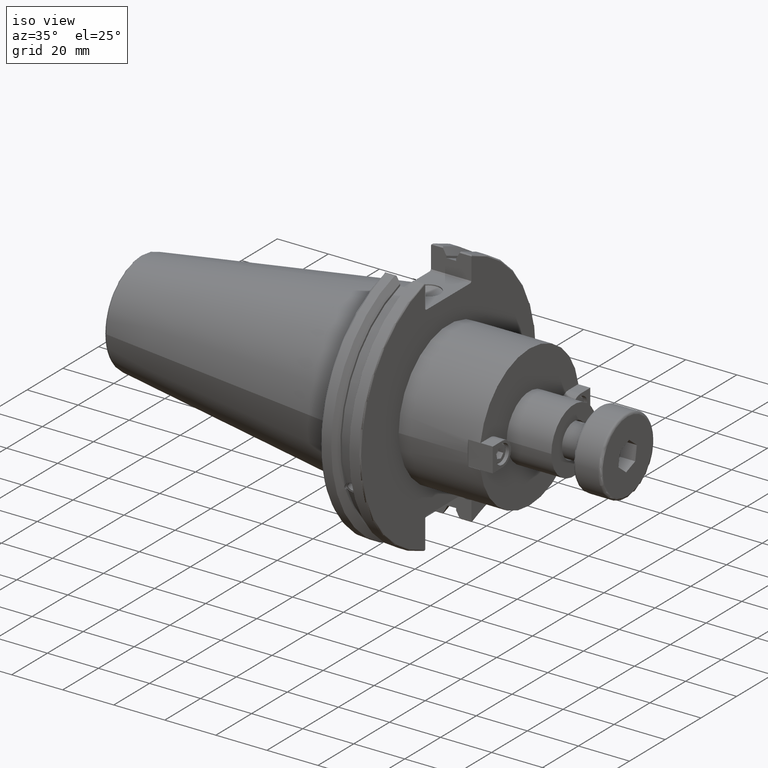
[diagram: clean part render]
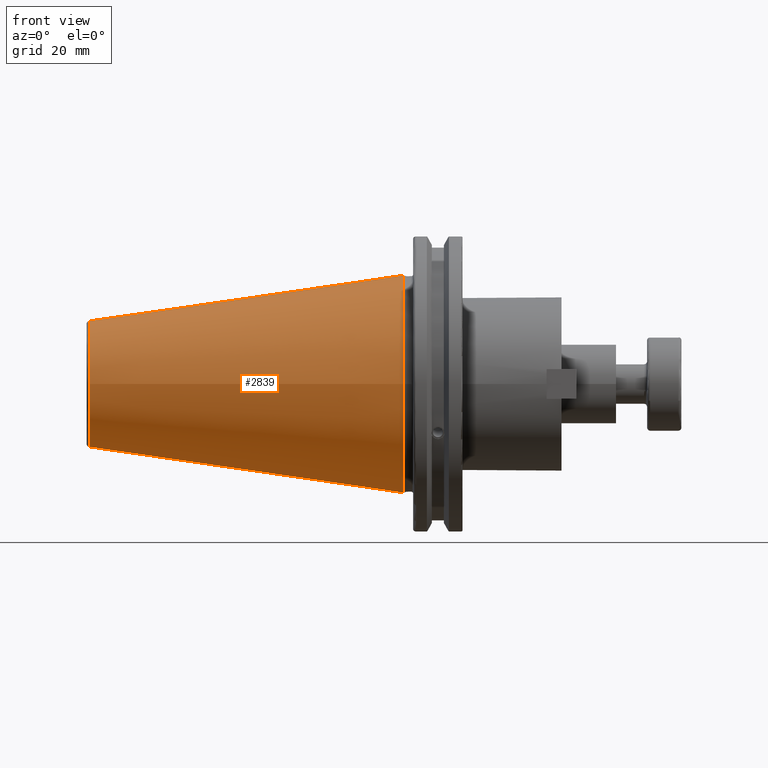
[diagram: tour spotlight — one face highlighted and labeled with its STEP entity id]
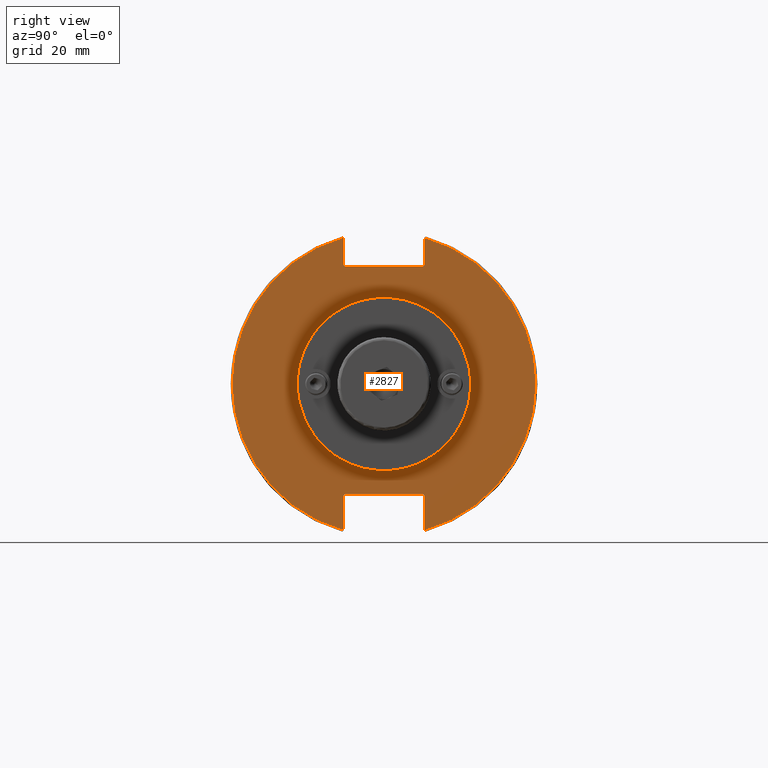
[diagram: tour spotlight — one face highlighted and labeled with its STEP entity id]
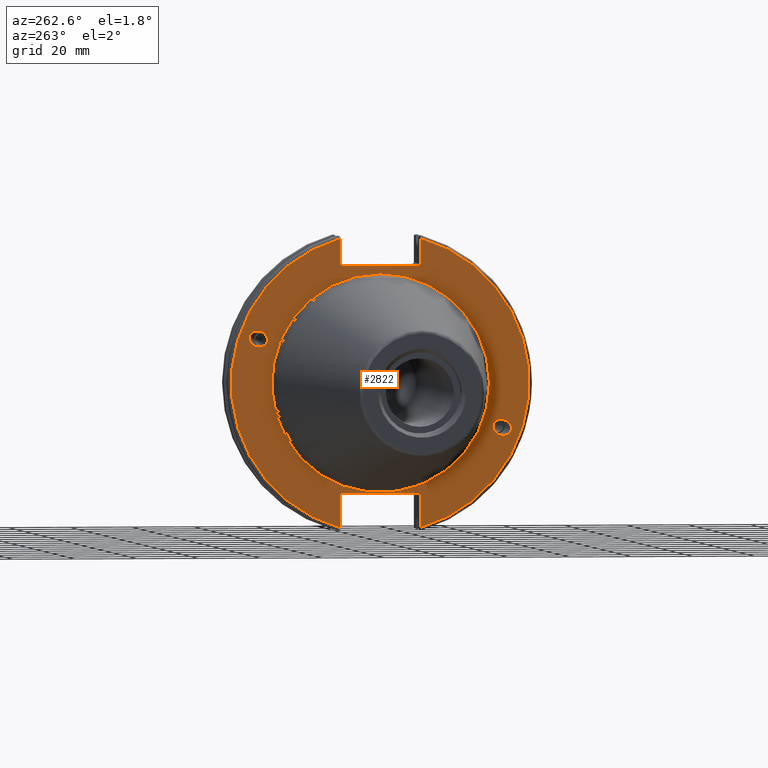
[diagram: tour spotlight — one face highlighted and labeled with its STEP entity id]
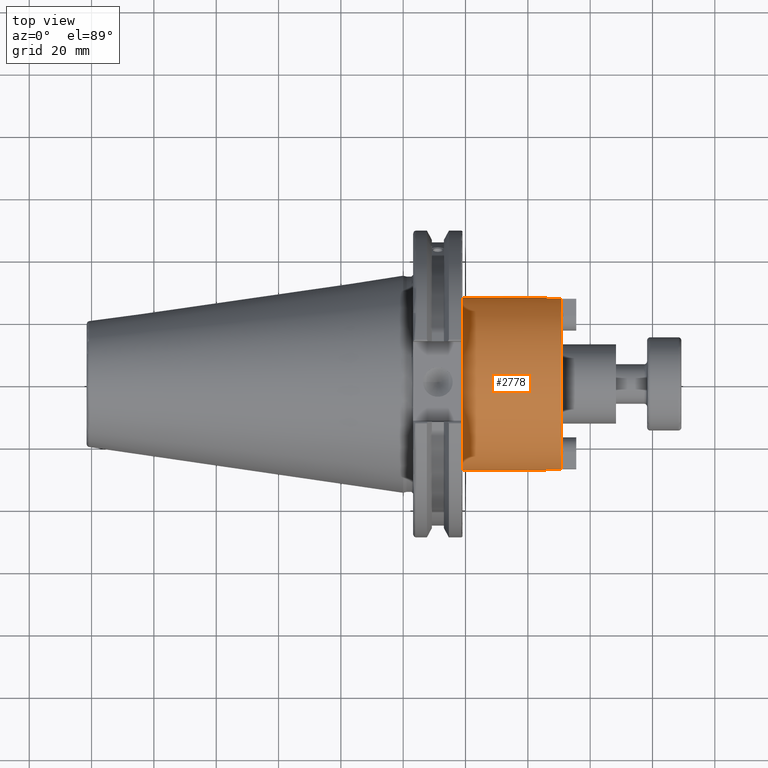
[diagram: tour spotlight — one face highlighted and labeled with its STEP entity id]
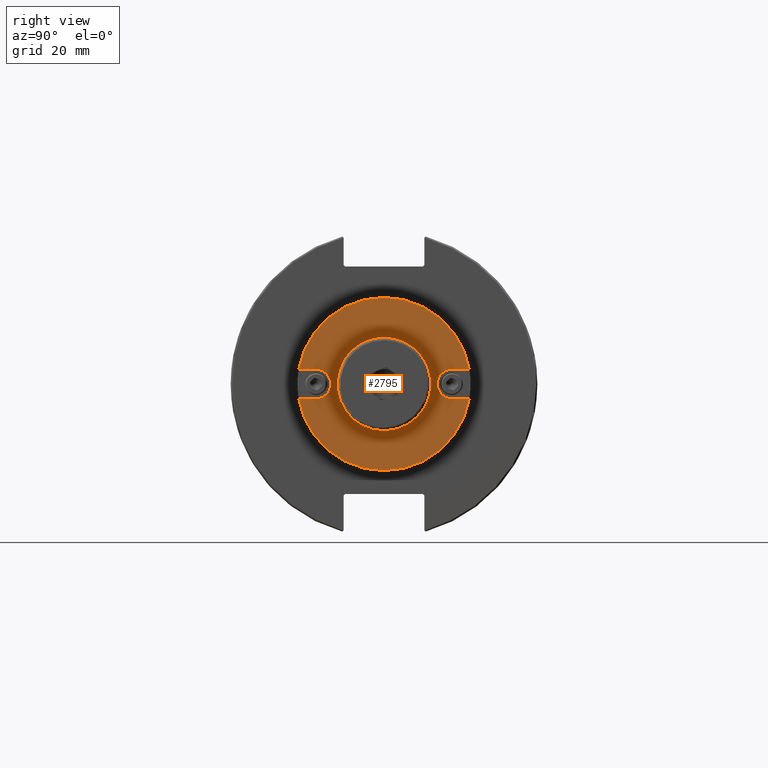
[diagram: tour spotlight — one face highlighted and labeled with its STEP entity id]
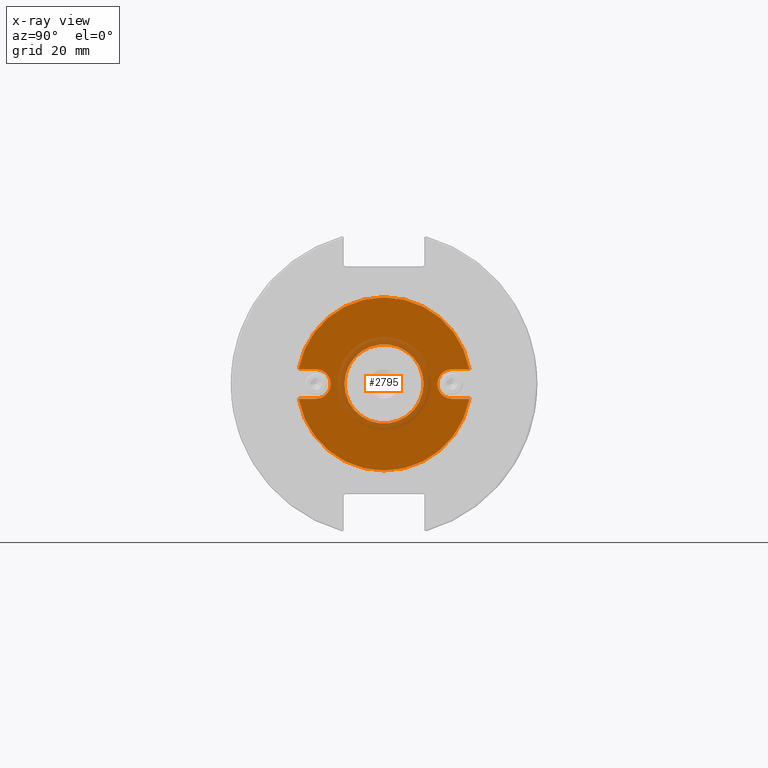
[diagram: x-ray of the same camera — body ghosted, this tour face saturated]
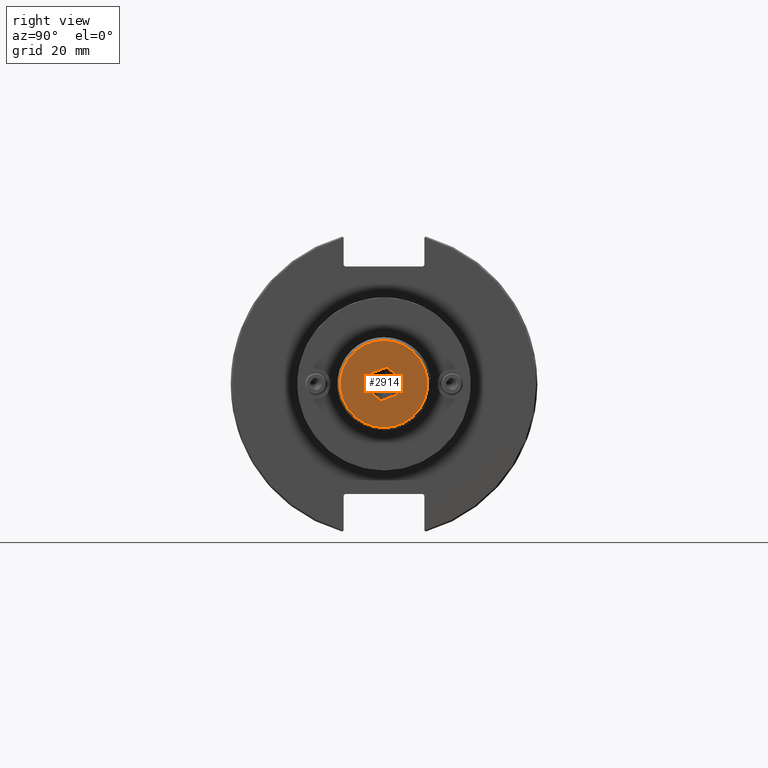
[diagram: tour spotlight — one face highlighted and labeled with its STEP entity id]
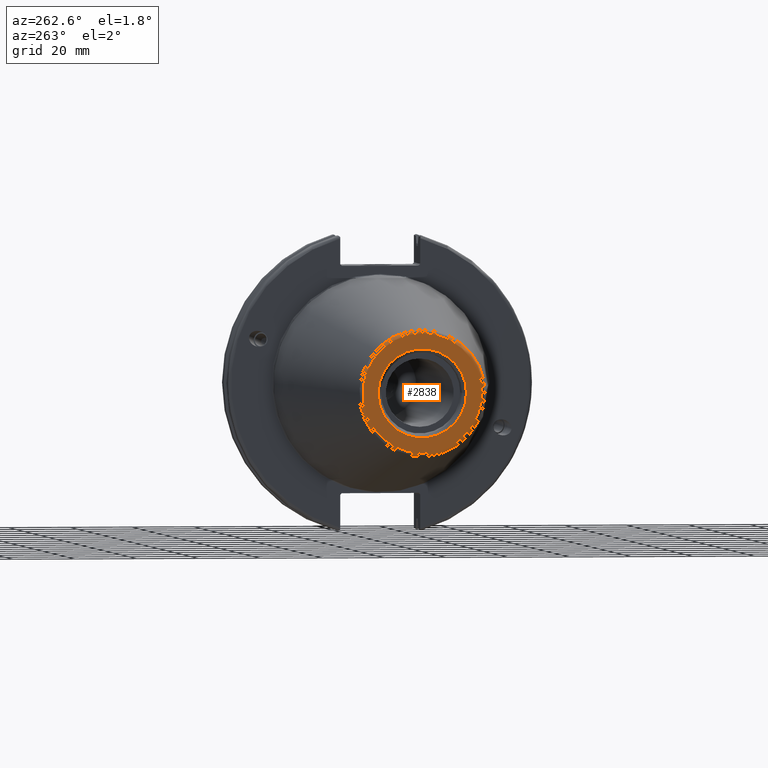
[diagram: tour spotlight — one face highlighted and labeled with its STEP entity id]
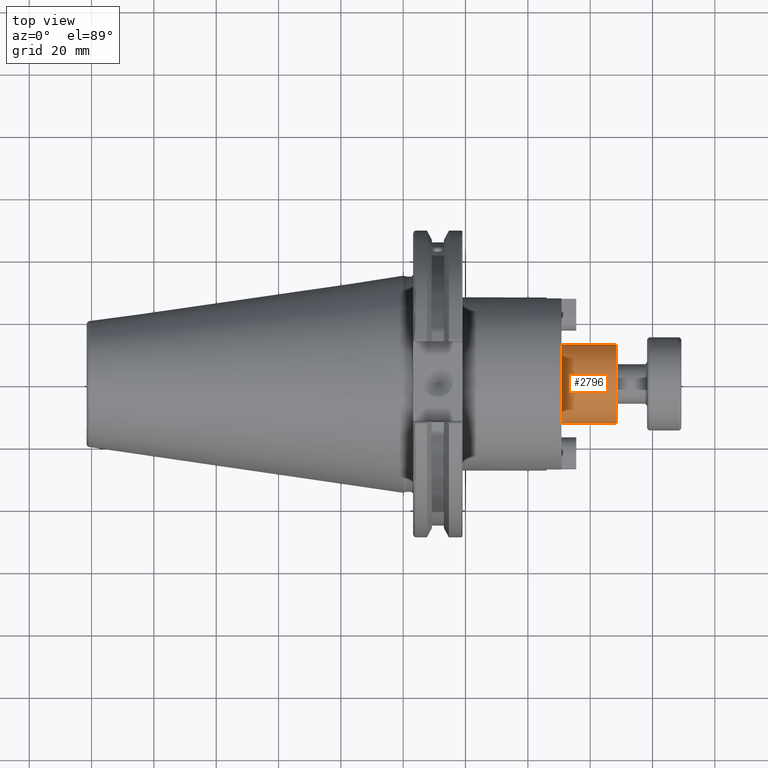
[diagram: tour spotlight — one face highlighted and labeled with its STEP entity id]
A machine part: a face-by-face anatomy tour. The part has 167 B-rep faces; the first image is the clean iso view, then the 8 largest visible faces are spotlighted one at a time (largest first), each with its STEP entity span.

Face 1 — front view, entity #2839. In plain terms, the highlighted conical surface has half-angle 8.297 deg.
Definition (entity closure, byte-faithful):
#571=CONICAL_SURFACE('',#3211,27.5166666666666,0.14481249823894);
#673=CIRCLE('',#3205,20.233121911427);
#674=CIRCLE('',#3206,20.233121911427);
#678=CIRCLE('',#3212,34.925);
#813=FACE_OUTER_BOUND('',#976,.T.);
#976=EDGE_LOOP('',(#2357,#2358,#2359,#2360,#2361));
#1154=LINE('',#5186,#1320);
#1320=VECTOR('',#3782,27.5166666666666);
#1550=VERTEX_POINT('',#5173);
#1551=VERTEX_POINT('',#5174);
#1554=VERTEX_POINT('',#5184);
#1846=EDGE_CURVE('',#1550,#1551,#673,.T.);
#1847=EDGE_CURVE('',#1551,#1550,#674,.T.);
#1851=EDGE_CURVE('',#1554,#1554,#678,.T.);
#1852=EDGE_CURVE('',#1554,#1551,#1154,.T.);
#2357=ORIENTED_EDGE('',*,*,#1851,.F.);
#2358=ORIENTED_EDGE('',*,*,#1852,.T.);
#2359=ORIENTED_EDGE('',*,*,#1846,.F.);
#2360=ORIENTED_EDGE('',*,*,#1847,.F.);
#2361=ORIENTED_EDGE('',*,*,#1852,.F.);
#2839=ADVANCED_FACE('',(#813),#571,.T.);
#3205=AXIS2_PLACEMENT_3D('',#5175,#3766,#3767);
#3206=AXIS2_PLACEMENT_3D('',#5176,#3768,#3769);
#3211=AXIS2_PLACEMENT_3D('',#5183,#3778,#3779);
#3212=AXIS2_PLACEMENT_3D('',#5185,#3780,#3781);
#3766=DIRECTION('center_axis',(-1.,0.,0.));
#3767=DIRECTION('ref_axis',(0.,-1.,3.06161699786838E-17));
#3768=DIRECTION('center_axis',(-1.,0.,0.));
#3769=DIRECTION('ref_axis',(0.,-1.,3.06161699786838E-17));
#3778=DIRECTION('center_axis',(1.,0.,0.));
#3779=DIRECTION('ref_axis',(0.,1.,0.));
#3780=DIRECTION('center_axis',(1.,0.,0.));
#3781=DIRECTION('ref_axis',(0.,0.,-1.));
#3782=DIRECTION('',(-0.989532981063281,0.144306893071729,1.76724974695192E-17));
#5173=CARTESIAN_POINT('',(-100.744306893072,-2.47784279855872E-15,20.233121911427));
#5174=CARTESIAN_POINT('',(-100.744306893072,-20.233121911427,-2.47784279855872E-15));
#5175=CARTESIAN_POINT('Origin',(-100.744306893072,0.,-3.09730349819841E-15));
#5176=CARTESIAN_POINT('Origin',(-100.744306893072,0.,-3.09730349819841E-15));
#5183=CARTESIAN_POINT('Origin',(-50.8,0.,0.));
#5184=CARTESIAN_POINT('',(-8.88178419700125E-15,-34.925,-4.27707894602213E-15));
#5185=CARTESIAN_POINT('Origin',(0.,0.,0.));
#5186=CARTESIAN_POINT('',(-50.8,-27.5166666666666,-3.3698197756538E-15));

Face 2 — right view, entity #2827. In plain terms, the highlighted planar face has unit normal (1, 0, 0).
Definition (entity closure, byte-faithful):
#599=FACE_BOUND('',#963,.T.);
#616=CIRCLE('',#3087,27.79);
#666=CIRCLE('',#3185,48.7125);
#668=CIRCLE('',#3190,48.7125);
#801=FACE_OUTER_BOUND('',#962,.T.);
#962=EDGE_LOOP('',(#2279,#2280,#2281,#2282,#2283,#2284,#2285,#2286,#2287,
#2288,#2289,#2290));
#963=EDGE_LOOP('',(#2291));
#1126=LINE('',#4997,#1292);
#1132=LINE('',#5019,#1298);
#1133=LINE('',#5021,#1299);
#1134=LINE('',#5023,#1300);
#1135=LINE('',#5025,#1301);
#1136=LINE('',#5027,#1302);
#1137=LINE('',#5031,#1303);
#1138=LINE('',#5033,#1304);
#1139=LINE('',#5035,#1305);
#1140=LINE('',#5036,#1306);
#1292=VECTOR('',#3706,10.);
#1298=VECTOR('',#3714,10.);
#1299=VECTOR('',#3715,10.);
#1300=VECTOR('',#3716,10.);
#1301=VECTOR('',#3717,10.);
#1302=VECTOR('',#3718,10.);
#1303=VECTOR('',#3721,10.);
#1304=VECTOR('',#3722,10.);
#1305=VECTOR('',#3723,10.);
#1306=VECTOR('',#3724,10.);
#1405=VERTEX_POINT('',#4280);
#1511=VERTEX_POINT('',#4957);
#1512=VERTEX_POINT('',#4962);
#1516=VERTEX_POINT('',#4996);
#1522=VERTEX_POINT('',#5018);
#1523=VERTEX_POINT('',#5020);
#1524=VERTEX_POINT('',#5022);
#1525=VERTEX_POINT('',#5024);
#1526=VERTEX_POINT('',#5026);
#1527=VERTEX_POINT('',#5028);
#1528=VERTEX_POINT('',#5030);
#1529=VERTEX_POINT('',#5032);
#1530=VERTEX_POINT('',#5034);
#1648=EDGE_CURVE('',#1405,#1405,#616,.T.);
#1789=EDGE_CURVE('',#1511,#1512,#666,.T.);
#1796=EDGE_CURVE('',#1516,#1512,#1126,.T.);
#1804=EDGE_CURVE('',#1511,#1522,#1132,.T.);
#1805=EDGE_CURVE('',#1523,#1522,#1133,.T.);
#1806=EDGE_CURVE('',#1523,#1524,#1134,.T.);
#1807=EDGE_CURVE('',#1525,#1524,#1135,.T.);
#1808=EDGE_CURVE('',#1525,#1526,#1136,.T.);
#1809=EDGE_CURVE('',#1527,#1526,#668,.T.);
#1810=EDGE_CURVE('',#1527,#1528,#1137,.T.);
#1811=EDGE_CURVE('',#1529,#1528,#1138,.T.);
#1812=EDGE_CURVE('',#1529,#1530,#1139,.T.);
#1813=EDGE_CURVE('',#1516,#1530,#1140,.T.);
#2279=ORIENTED_EDGE('',*,*,#1789,.F.);
#2280=ORIENTED_EDGE('',*,*,#1804,.T.);
#2281=ORIENTED_EDGE('',*,*,#1805,.F.);
#2282=ORIENTED_EDGE('',*,*,#1806,.T.);
#2283=ORIENTED_EDGE('',*,*,#1807,.F.);
#2284=ORIENTED_EDGE('',*,*,#1808,.T.);
#2285=ORIENTED_EDGE('',*,*,#1809,.F.);
#2286=ORIENTED_EDGE('',*,*,#1810,.T.);
#2287=ORIENTED_EDGE('',*,*,#1811,.F.);
#2288=ORIENTED_EDGE('',*,*,#1812,.T.);
#2289=ORIENTED_EDGE('',*,*,#1813,.F.);
#2290=ORIENTED_EDGE('',*,*,#1796,.T.);
#2291=ORIENTED_EDGE('',*,*,#1648,.T.);
#2719=PLANE('',#3189);
#2827=ADVANCED_FACE('',(#801,#599),#2719,.T.);
#3087=AXIS2_PLACEMENT_3D('',#4282,#3448,#3449);
#3185=AXIS2_PLACEMENT_3D('',#4963,#3696,#3697);
#3189=AXIS2_PLACEMENT_3D('',#5017,#3712,#3713);
#3190=AXIS2_PLACEMENT_3D('',#5029,#3719,#3720);
#3448=DIRECTION('center_axis',(-1.,0.,0.));
#3449=DIRECTION('ref_axis',(0.,1.,0.));
#3696=DIRECTION('center_axis',(-1.,0.,0.));
#3697=DIRECTION('ref_axis',(0.,-1.,1.60812264967664E-16));
#3706=DIRECTION('',(0.,0.,1.));
#3712=DIRECTION('center_axis',(1.,0.,0.));
#3713=DIRECTION('ref_axis',(0.,0.,-1.));
#3714=DIRECTION('',(0.,0.,1.));
#3715=DIRECTION('',(0.,-0.707106781186549,-0.707106781186546));
#3716=DIRECTION('',(0.,1.,0.));
#3717=DIRECTION('',(0.,-0.707106781186549,0.707106781186546));
#3718=DIRECTION('',(0.,0.,-1.));
#3719=DIRECTION('center_axis',(-1.,0.,0.));
#3720=DIRECTION('ref_axis',(0.,1.,-6.12323399573677E-17));
#3721=DIRECTION('',(0.,0.,-1.));
#3722=DIRECTION('',(0.,0.707106781186549,0.707106781186546));
#3723=DIRECTION('',(0.,-1.,0.));
#3724=DIRECTION('',(0.,0.707106781186549,-0.707106781186546));
#4280=CARTESIAN_POINT('',(19.05,-27.79,-3.40329345483049E-15));
#4282=CARTESIAN_POINT('Origin',(19.05,0.,0.));
#4957=CARTESIAN_POINT('',(19.05,-12.95,-46.9596119686907));
#4962=CARTESIAN_POINT('',(19.05,-12.95,46.9596119686907));
#4963=CARTESIAN_POINT('Origin',(19.05,0.,0.));
#4996=CARTESIAN_POINT('',(19.05,-12.95,38.219));
#4997=CARTESIAN_POINT('',(19.05,-12.95,18.8595));
#5017=CARTESIAN_POINT('Origin',(19.05,0.,0.));
#5018=CARTESIAN_POINT('',(19.05,-12.95,-35.806));
#5019=CARTESIAN_POINT('',(19.05,-12.95,-17.653));
#5020=CARTESIAN_POINT('',(19.05,-12.45,-35.306));
#5021=CARTESIAN_POINT('',(19.05,-0.635999999999989,-23.492));
#5022=CARTESIAN_POINT('',(19.05,12.45,-35.306));
#5023=CARTESIAN_POINT('',(19.05,-3.33066907387547E-15,-35.306));
#5024=CARTESIAN_POINT('',(19.05,12.95,-35.806));
#5025=CARTESIAN_POINT('',(19.05,0.635999999999982,-23.492));
#5026=CARTESIAN_POINT('',(19.05,12.95,-46.9596119686907));
#5027=CARTESIAN_POINT('',(19.05,12.95,-17.653));
#5028=CARTESIAN_POINT('',(19.05,12.95,46.9596119686907));
#5029=CARTESIAN_POINT('Origin',(19.05,0.,0.));
#5030=CARTESIAN_POINT('',(19.05,12.95,38.219));
#5031=CARTESIAN_POINT('',(19.05,12.95,18.8595));
#5032=CARTESIAN_POINT('',(19.05,12.45,37.719));
#5033=CARTESIAN_POINT('',(19.05,0.0327499999999836,25.30175));
#5034=CARTESIAN_POINT('',(19.05,-12.45,37.719));
#5035=CARTESIAN_POINT('',(19.05,0.,37.719));
#5036=CARTESIAN_POINT('',(19.05,-0.0327499999999817,25.30175));

Face 3 — auxiliary view, entity #2822. In plain terms, the highlighted planar face has unit normal (-1, 0, 0).
Definition (entity closure, byte-faithful):
#476=ELLIPSE('',#3139,3.05193647190364,2.5);
#477=ELLIPSE('',#3173,3.05193647190364,2.5);
#596=FACE_BOUND('',#955,.T.);
#597=FACE_BOUND('',#956,.T.);
#598=FACE_BOUND('',#957,.T.);
#661=CIRCLE('',#3177,35.125);
#663=CIRCLE('',#3180,48.2125);
#664=CIRCLE('',#3181,48.2125);
#796=FACE_OUTER_BOUND('',#954,.T.);
#954=EDGE_LOOP('',(#2237,#2238,#2239,#2240,#2241,#2242,#2243,#2244,#2245,
#2246,#2247,#2248));
#955=EDGE_LOOP('',(#2249));
#956=EDGE_LOOP('',(#2250));
#957=EDGE_LOOP('',(#2251));
#1113=LINE('',#4931,#1279);
#1114=LINE('',#4933,#1280);
#1115=LINE('',#4935,#1281);
#1116=LINE('',#4937,#1282);
#1117=LINE('',#4939,#1283);
#1118=LINE('',#4943,#1284);
#1119=LINE('',#4945,#1285);
#1120=LINE('',#4947,#1286);
#1121=LINE('',#4949,#1287);
#1122=LINE('',#4950,#1288);
#1279=VECTOR('',#3677,10.);
#1280=VECTOR('',#3678,10.);
#1281=VECTOR('',#3679,10.);
#1282=VECTOR('',#3680,10.);
#1283=VECTOR('',#3681,10.);
#1284=VECTOR('',#3684,10.);
#1285=VECTOR('',#3685,10.);
#1286=VECTOR('',#3686,10.);
#1287=VECTOR('',#3687,10.);
#1288=VECTOR('',#3688,10.);
#1457=VERTEX_POINT('',#4703);
#1493=VERTEX_POINT('',#4915);
#1496=VERTEX_POINT('',#4922);
#1497=VERTEX_POINT('',#4927);
#1498=VERTEX_POINT('',#4928);
#1499=VERTEX_POINT('',#4930);
#1500=VERTEX_POINT('',#4932);
#1501=VERTEX_POINT('',#4934);
#1502=VERTEX_POINT('',#4936);
#1503=VERTEX_POINT('',#4938);
#1504=VERTEX_POINT('',#4940);
#1505=VERTEX_POINT('',#4942);
#1506=VERTEX_POINT('',#4944);
#1507=VERTEX_POINT('',#4946);
#1508=VERTEX_POINT('',#4948);
#1721=EDGE_CURVE('',#1457,#1457,#476,.T.);
#1769=EDGE_CURVE('',#1493,#1493,#477,.T.);
#1772=EDGE_CURVE('',#1496,#1496,#661,.T.);
#1774=EDGE_CURVE('',#1497,#1498,#663,.T.);
#1775=EDGE_CURVE('',#1497,#1499,#1113,.T.);
#1776=EDGE_CURVE('',#1500,#1499,#1114,.T.);
#1777=EDGE_CURVE('',#1500,#1501,#1115,.T.);
#1778=EDGE_CURVE('',#1502,#1501,#1116,.T.);
#1779=EDGE_CURVE('',#1502,#1503,#1117,.T.);
#1780=EDGE_CURVE('',#1504,#1503,#664,.T.);
#1781=EDGE_CURVE('',#1504,#1505,#1118,.T.);
#1782=EDGE_CURVE('',#1506,#1505,#1119,.T.);
#1783=EDGE_CURVE('',#1506,#1507,#1120,.T.);
#1784=EDGE_CURVE('',#1508,#1507,#1121,.T.);
#1785=EDGE_CURVE('',#1508,#1498,#1122,.T.);
#2237=ORIENTED_EDGE('',*,*,#1774,.F.);
#2238=ORIENTED_EDGE('',*,*,#1775,.T.);
#2239=ORIENTED_EDGE('',*,*,#1776,.F.);
#2240=ORIENTED_EDGE('',*,*,#1777,.T.);
#2241=ORIENTED_EDGE('',*,*,#1778,.F.);
#2242=ORIENTED_EDGE('',*,*,#1779,.T.);
#2243=ORIENTED_EDGE('',*,*,#1780,.F.);
#2244=ORIENTED_EDGE('',*,*,#1781,.T.);
#2245=ORIENTED_EDGE('',*,*,#1782,.F.);
#2246=ORIENTED_EDGE('',*,*,#1783,.T.);
#2247=ORIENTED_EDGE('',*,*,#1784,.F.);
#2248=ORIENTED_EDGE('',*,*,#1785,.T.);
#2249=ORIENTED_EDGE('',*,*,#1721,.T.);
#2250=ORIENTED_EDGE('',*,*,#1769,.T.);
#2251=ORIENTED_EDGE('',*,*,#1772,.F.);
#2716=PLANE('',#3179);
#2822=ADVANCED_FACE('',(#796,#596,#597,#598),#2716,.T.);
#3139=AXIS2_PLACEMENT_3D('',#4705,#3578,#3579);
#3173=AXIS2_PLACEMENT_3D('',#4917,#3661,#3662);
#3177=AXIS2_PLACEMENT_3D('',#4924,#3669,#3670);
#3179=AXIS2_PLACEMENT_3D('',#4926,#3673,#3674);
#3180=AXIS2_PLACEMENT_3D('',#4929,#3675,#3676);
#3181=AXIS2_PLACEMENT_3D('',#4941,#3682,#3683);
#3578=DIRECTION('center_axis',(1.,0.,0.));
#3579=DIRECTION('ref_axis',(0.,-0.939692620785908,-0.342020143325668));
#3661=DIRECTION('center_axis',(1.,0.,0.));
#3662=DIRECTION('ref_axis',(0.,0.939692620785908,0.342020143325669));
#3669=DIRECTION('center_axis',(-1.,0.,0.));
#3670=DIRECTION('ref_axis',(0.,-1.,1.83697019872103E-16));
#3673=DIRECTION('center_axis',(-1.,0.,0.));
#3674=DIRECTION('ref_axis',(0.,0.,1.));
#3675=DIRECTION('center_axis',(1.,0.,0.));
#3676=DIRECTION('ref_axis',(0.,-1.,1.60812264967664E-16));
#3677=DIRECTION('',(0.,0.,-1.));
#3678=DIRECTION('',(0.,-0.707106781186549,0.707106781186546));
#3679=DIRECTION('',(0.,1.,0.));
#3680=DIRECTION('',(0.,-0.707106781186549,-0.707106781186546));
#3681=DIRECTION('',(0.,0.,1.));
#3682=DIRECTION('center_axis',(1.,0.,0.));
#3683=DIRECTION('ref_axis',(0.,1.,-6.12323399573677E-17));
#3684=DIRECTION('',(0.,0.,1.));
#3685=DIRECTION('',(0.,0.707106781186549,-0.707106781186546));
#3686=DIRECTION('',(0.,-1.,0.));
#3687=DIRECTION('',(0.,0.707106781186549,0.707106781186546));
#3688=DIRECTION('',(0.,0.,-1.));
#4703=CARTESIAN_POINT('',(3.175,-36.5992078912529,-13.3210222701368));
#4705=CARTESIAN_POINT('Origin',(3.175,-39.4670900730082,-14.3648460196781));
#4915=CARTESIAN_POINT('',(3.175,36.5992078912529,13.3210222701368));
#4917=CARTESIAN_POINT('Origin',(3.175,39.4670900730082,14.3648460196781));
#4922=CARTESIAN_POINT('',(3.175,-4.30157188200508E-15,35.125));
#4924=CARTESIAN_POINT('Origin',(3.175,0.,0.));
#4926=CARTESIAN_POINT('Origin',(3.175,49.2125,0.));
#4927=CARTESIAN_POINT('',(3.175,-12.95,46.4407434937254));
#4928=CARTESIAN_POINT('',(3.175,-12.95,-46.4407434937254));
#4929=CARTESIAN_POINT('Origin',(3.175,0.,0.));
#4930=CARTESIAN_POINT('',(3.175,-12.95,38.219));
#4931=CARTESIAN_POINT('',(3.175,-12.95,18.8595));
#4932=CARTESIAN_POINT('',(3.175,-12.45,37.719));
#4933=CARTESIAN_POINT('',(3.175,12.2703750000001,12.998625));
#4934=CARTESIAN_POINT('',(3.175,12.45,37.719));
#4935=CARTESIAN_POINT('',(3.175,24.60625,37.719));
#4936=CARTESIAN_POINT('',(3.175,12.95,38.219));
#4937=CARTESIAN_POINT('',(3.175,12.335875,37.604875));
#4938=CARTESIAN_POINT('',(3.175,12.95,46.4407434937254));
#4939=CARTESIAN_POINT('',(3.175,12.95,18.8595));
#4940=CARTESIAN_POINT('',(3.175,12.95,-46.4407434937254));
#4941=CARTESIAN_POINT('Origin',(3.175,0.,0.));
#4942=CARTESIAN_POINT('',(3.175,12.95,-35.806));
#4943=CARTESIAN_POINT('',(3.175,12.95,-17.653));
#4944=CARTESIAN_POINT('',(3.175,12.45,-35.306));
#4945=CARTESIAN_POINT('',(3.175,12.939125,-35.795125));
#4946=CARTESIAN_POINT('',(3.175,-12.45,-35.306));
#4947=CARTESIAN_POINT('',(3.175,24.60625,-35.306));
#4948=CARTESIAN_POINT('',(3.175,-12.95,-35.806));
#4949=CARTESIAN_POINT('',(3.175,11.6671250000001,-11.188875));
#4950=CARTESIAN_POINT('',(3.175,-12.95,-17.653));

Face 4 — top view, entity #2778. In plain terms, the highlighted cylindrical surface (bore or boss wall) has radius 27.79 mm, axis along (1, 0, 0).
Definition (entity closure, byte-faithful):
#524=CYLINDRICAL_SURFACE('',#3086,27.79);
#610=CIRCLE('',#3076,27.79);
#612=CIRCLE('',#3078,27.79);
#616=CIRCLE('',#3087,27.79);
#617=CIRCLE('',#3088,27.79);
#618=CIRCLE('',#3089,27.79);
#619=CIRCLE('',#3090,27.79);
#752=FACE_OUTER_BOUND('',#896,.T.);
#896=EDGE_LOOP('',(#2012,#2013,#2014,#2015,#2016,#2017,#2018,#2019,#2020,
#2021,#2022,#2023));
#1061=LINE('',#4248,#1227);
#1069=LINE('',#4277,#1235);
#1071=LINE('',#4281,#1237);
#1072=LINE('',#4286,#1238);
#1073=LINE('',#4290,#1239);
#1227=VECTOR('',#3413,10.);
#1235=VECTOR('',#3443,10.);
#1237=VECTOR('',#3447,27.79);
#1238=VECTOR('',#3452,10.);
#1239=VECTOR('',#3455,10.);
#1393=VERTEX_POINT('',#4246);
#1394=VERTEX_POINT('',#4247);
#1397=VERTEX_POINT('',#4255);
#1399=VERTEX_POINT('',#4259);
#1404=VERTEX_POINT('',#4276);
#1405=VERTEX_POINT('',#4280);
#1406=VERTEX_POINT('',#4283);
#1407=VERTEX_POINT('',#4285);
#1408=VERTEX_POINT('',#4287);
#1409=VERTEX_POINT('',#4289);
#1631=EDGE_CURVE('',#1393,#1394,#1061,.T.);
#1635=EDGE_CURVE('',#1394,#1397,#610,.T.);
#1638=EDGE_CURVE('',#1397,#1399,#612,.T.);
#1645=EDGE_CURVE('',#1399,#1404,#1069,.T.);
#1647=EDGE_CURVE('',#1397,#1405,#1071,.T.);
#1648=EDGE_CURVE('',#1405,#1405,#616,.T.);
#1649=EDGE_CURVE('',#1406,#1404,#617,.T.);
#1650=EDGE_CURVE('',#1406,#1407,#1072,.T.);
#1651=EDGE_CURVE('',#1407,#1408,#618,.T.);
#1652=EDGE_CURVE('',#1408,#1409,#1073,.T.);
#1653=EDGE_CURVE('',#1393,#1409,#619,.T.);
#2012=ORIENTED_EDGE('',*,*,#1631,.T.);
#2013=ORIENTED_EDGE('',*,*,#1635,.T.);
#2014=ORIENTED_EDGE('',*,*,#1647,.T.);
#2015=ORIENTED_EDGE('',*,*,#1648,.F.);
#2016=ORIENTED_EDGE('',*,*,#1647,.F.);
#2017=ORIENTED_EDGE('',*,*,#1638,.T.);
#2018=ORIENTED_EDGE('',*,*,#1645,.T.);
#2019=ORIENTED_EDGE('',*,*,#1649,.F.);
#2020=ORIENTED_EDGE('',*,*,#1650,.T.);
#2021=ORIENTED_EDGE('',*,*,#1651,.T.);
#2022=ORIENTED_EDGE('',*,*,#1652,.T.);
#2023=ORIENTED_EDGE('',*,*,#1653,.F.);
#2778=ADVANCED_FACE('',(#752),#524,.T.);
#3076=AXIS2_PLACEMENT_3D('',#4256,#3419,#3420);
#3078=AXIS2_PLACEMENT_3D('',#4261,#3424,#3425);
#3086=AXIS2_PLACEMENT_3D('',#4279,#3445,#3446);
#3087=AXIS2_PLACEMENT_3D('',#4282,#3448,#3449);
#3088=AXIS2_PLACEMENT_3D('',#4284,#3450,#3451);
#3089=AXIS2_PLACEMENT_3D('',#4288,#3453,#3454);
#3090=AXIS2_PLACEMENT_3D('',#4291,#3456,#3457);
#3413=DIRECTION('',(-1.,0.,0.));
#3419=DIRECTION('center_axis',(-1.,0.,0.));
#3420=DIRECTION('ref_axis',(0.,1.,0.));
#3424=DIRECTION('center_axis',(-1.,0.,0.));
#3425=DIRECTION('ref_axis',(0.,1.,0.));
#3443=DIRECTION('',(1.,0.,0.));
#3445=DIRECTION('center_axis',(1.,0.,0.));
#3446=DIRECTION('ref_axis',(0.,1.,0.));
#3447=DIRECTION('',(-1.,0.,0.));
#3448=DIRECTION('center_axis',(-1.,0.,0.));
#3449=DIRECTION('ref_axis',(0.,1.,0.));
#3450=DIRECTION('center_axis',(1.,0.,0.));
#3451=DIRECTION('ref_axis',(0.,0.,-1.));
#3452=DIRECTION('',(-1.,0.,0.));
#3453=DIRECTION('center_axis',(-1.,0.,0.));
#3454=DIRECTION('ref_axis',(0.,1.,0.));
#3455=DIRECTION('',(1.,0.,0.));
#3456=DIRECTION('center_axis',(1.,0.,0.));
#3457=DIRECTION('ref_axis',(0.,0.,-1.));
#4246=CARTESIAN_POINT('',(50.8,-27.3793078802222,-4.76));
#4247=CARTESIAN_POINT('',(46.03,-27.3793078802222,-4.76));
#4248=CARTESIAN_POINT('',(34.925,-27.3793078802222,-4.76));
#4255=CARTESIAN_POINT('',(46.03,-27.79,-3.40329345483049E-15));
#4256=CARTESIAN_POINT('Origin',(46.03,0.,0.));
#4259=CARTESIAN_POINT('',(46.03,-27.3793078802222,4.76000000000001));
#4261=CARTESIAN_POINT('Origin',(46.03,0.,0.));
#4276=CARTESIAN_POINT('',(50.8,-27.3793078802222,4.76000000000001));
#4277=CARTESIAN_POINT('',(34.925,-27.3793078802222,4.76000000000001));
#4279=CARTESIAN_POINT('Origin',(34.925,0.,0.));
#4280=CARTESIAN_POINT('',(19.05,-27.79,-3.40329345483049E-15));
#4281=CARTESIAN_POINT('',(34.925,-27.79,-3.40329345483049E-15));
#4282=CARTESIAN_POINT('Origin',(19.05,0.,0.));
#4283=CARTESIAN_POINT('',(50.8,27.3793078802222,4.76));
#4284=CARTESIAN_POINT('Origin',(50.8,0.,0.));
#4285=CARTESIAN_POINT('',(46.03,27.3793078802222,4.76));
#4286=CARTESIAN_POINT('',(34.925,27.3793078802222,4.76));
#4287=CARTESIAN_POINT('',(46.03,27.3793078802222,-4.76));
#4288=CARTESIAN_POINT('Origin',(46.03,0.,0.));
#4289=CARTESIAN_POINT('',(50.8,27.3793078802222,-4.76));
#4290=CARTESIAN_POINT('',(34.925,27.3793078802222,-4.76));
#4291=CARTESIAN_POINT('Origin',(50.8,0.,0.));

Face 5 — right view, entity #2795. An x-ray twin of the same camera follows (body ghosted, this face saturated) — the face is partly hidden behind the body. In plain terms, the highlighted planar face has unit normal (1, 0, 0).
Definition (entity closure, byte-faithful):
#587=FACE_BOUND('',#919,.T.);
#615=CIRCLE('',#3084,4.76000000000001);
#617=CIRCLE('',#3088,27.79);
#619=CIRCLE('',#3090,27.79);
#623=CIRCLE('',#3099,4.76000000000001);
#636=CIRCLE('',#3124,12.7);
#769=FACE_OUTER_BOUND('',#918,.T.);
#918=EDGE_LOOP('',(#2102,#2103,#2104,#2105,#2106,#2107,#2108,#2109));
#919=EDGE_LOOP('',(#2110));
#1062=LINE('',#4250,#1228);
#1070=LINE('',#4278,#1236);
#1076=LINE('',#4303,#1242);
#1081=LINE('',#4316,#1247);
#1228=VECTOR('',#3414,10.);
#1236=VECTOR('',#3444,10.);
#1242=VECTOR('',#3470,10.);
#1247=VECTOR('',#3485,10.);
#1393=VERTEX_POINT('',#4246);
#1395=VERTEX_POINT('',#4249);
#1403=VERTEX_POINT('',#4272);
#1404=VERTEX_POINT('',#4276);
#1406=VERTEX_POINT('',#4283);
#1409=VERTEX_POINT('',#4289);
#1413=VERTEX_POINT('',#4302);
#1416=VERTEX_POINT('',#4312);
#1439=VERTEX_POINT('',#4558);
#1632=EDGE_CURVE('',#1395,#1393,#1062,.T.);
#1643=EDGE_CURVE('',#1403,#1395,#615,.T.);
#1646=EDGE_CURVE('',#1404,#1403,#1070,.T.);
#1649=EDGE_CURVE('',#1406,#1404,#617,.T.);
#1653=EDGE_CURVE('',#1393,#1409,#619,.T.);
#1658=EDGE_CURVE('',#1413,#1406,#1076,.T.);
#1663=EDGE_CURVE('',#1416,#1413,#623,.T.);
#1665=EDGE_CURVE('',#1409,#1416,#1081,.T.);
#1698=EDGE_CURVE('',#1439,#1439,#636,.T.);
#2102=ORIENTED_EDGE('',*,*,#1632,.T.);
#2103=ORIENTED_EDGE('',*,*,#1653,.T.);
#2104=ORIENTED_EDGE('',*,*,#1665,.T.);
#2105=ORIENTED_EDGE('',*,*,#1663,.T.);
#2106=ORIENTED_EDGE('',*,*,#1658,.T.);
#2107=ORIENTED_EDGE('',*,*,#1649,.T.);
#2108=ORIENTED_EDGE('',*,*,#1646,.T.);
#2109=ORIENTED_EDGE('',*,*,#1643,.T.);
#2110=ORIENTED_EDGE('',*,*,#1698,.F.);
#2707=PLANE('',#3123);
#2795=ADVANCED_FACE('',(#769,#587),#2707,.T.);
#3084=AXIS2_PLACEMENT_3D('',#4273,#3438,#3439);
#3088=AXIS2_PLACEMENT_3D('',#4284,#3450,#3451);
#3090=AXIS2_PLACEMENT_3D('',#4291,#3456,#3457);
#3099=AXIS2_PLACEMENT_3D('',#4313,#3480,#3481);
#3123=AXIS2_PLACEMENT_3D('',#4557,#3536,#3537);
#3124=AXIS2_PLACEMENT_3D('',#4559,#3538,#3539);
#3414=DIRECTION('',(0.,-1.,1.92114806930115E-16));
#3438=DIRECTION('center_axis',(-1.,0.,0.));
#3439=DIRECTION('ref_axis',(0.,-1.22464679914735E-16,-1.));
#3444=DIRECTION('',(0.,1.,-5.28145528993553E-17));
#3450=DIRECTION('center_axis',(1.,0.,0.));
#3451=DIRECTION('ref_axis',(0.,0.,-1.));
#3456=DIRECTION('center_axis',(1.,0.,0.));
#3457=DIRECTION('ref_axis',(0.,0.,-1.));
#3470=DIRECTION('',(0.,1.,-6.965012701538E-17));
#3480=DIRECTION('center_axis',(-1.,0.,0.));
#3481=DIRECTION('ref_axis',(0.,0.,1.));
#3485=DIRECTION('',(0.,-1.,-6.965012701538E-17));
#3536=DIRECTION('center_axis',(1.,0.,0.));
#3537=DIRECTION('ref_axis',(0.,0.,-1.));
#3538=DIRECTION('center_axis',(1.,0.,0.));
#3539=DIRECTION('ref_axis',(0.,0.,-1.));
#4246=CARTESIAN_POINT('',(50.8,-27.3793078802222,-4.76));
#4249=CARTESIAN_POINT('',(50.8,-21.85,-4.76));
#4250=CARTESIAN_POINT('',(50.8,-4.575,-4.76));
#4272=CARTESIAN_POINT('',(50.8,-21.85,4.76000000000001));
#4273=CARTESIAN_POINT('Origin',(50.8,-21.85,6.46192953689909E-15));
#4276=CARTESIAN_POINT('',(50.8,-27.3793078802222,4.76000000000001));
#4278=CARTESIAN_POINT('',(50.8,-12.545,4.76000000000001));
#4283=CARTESIAN_POINT('',(50.8,27.3793078802222,4.76));
#4284=CARTESIAN_POINT('Origin',(50.8,0.,0.));
#4289=CARTESIAN_POINT('',(50.8,27.3793078802222,-4.76));
#4291=CARTESIAN_POINT('Origin',(50.8,0.,0.));
#4302=CARTESIAN_POINT('',(50.8,21.85,4.76));
#4303=CARTESIAN_POINT('',(50.8,17.275,4.76));
#4312=CARTESIAN_POINT('',(50.8,21.85,-4.76));
#4313=CARTESIAN_POINT('Origin',(50.8,21.85,-3.78607628076212E-15));
#4316=CARTESIAN_POINT('',(50.8,25.245,-4.76));
#4557=CARTESIAN_POINT('Origin',(50.8,12.7,0.));
#4558=CARTESIAN_POINT('',(50.8,-12.7,-1.55530143491714E-15));
#4559=CARTESIAN_POINT('Origin',(50.8,0.,0.));

Face 6 — right view, entity #2914. In plain terms, the highlighted planar face has unit normal (1, -0, -0).
Definition (entity closure, byte-faithful):
#609=FACE_BOUND('',#1060,.T.);
#743=CIRCLE('',#3372,14.);
#888=FACE_OUTER_BOUND('',#1059,.T.);
#1059=EDGE_LOOP('',(#2692));
#1060=EDGE_LOOP('',(#2693,#2694,#2695,#2696,#2697,#2698));
#1212=LINE('',#5673,#1378);
#1215=LINE('',#5678,#1381);
#1217=LINE('',#5682,#1383);
#1219=LINE('',#5686,#1385);
#1221=LINE('',#5690,#1387);
#1223=LINE('',#5693,#1389);
#1378=VECTOR('',#4104,10.);
#1381=VECTOR('',#4109,10.);
#1383=VECTOR('',#4113,10.);
#1385=VECTOR('',#4117,10.);
#1387=VECTOR('',#4121,10.);
#1389=VECTOR('',#4125,10.);
#1613=VERTEX_POINT('',#5671);
#1614=VERTEX_POINT('',#5672);
#1615=VERTEX_POINT('',#5677);
#1616=VERTEX_POINT('',#5681);
#1617=VERTEX_POINT('',#5685);
#1618=VERTEX_POINT('',#5689);
#1630=VERTEX_POINT('',#5729);
#1957=EDGE_CURVE('',#1613,#1614,#1212,.T.);
#1960=EDGE_CURVE('',#1615,#1613,#1215,.T.);
#1962=EDGE_CURVE('',#1616,#1615,#1217,.T.);
#1964=EDGE_CURVE('',#1617,#1616,#1219,.T.);
#1966=EDGE_CURVE('',#1618,#1617,#1221,.T.);
#1968=EDGE_CURVE('',#1614,#1618,#1223,.T.);
#1986=EDGE_CURVE('',#1630,#1630,#743,.T.);
#2692=ORIENTED_EDGE('',*,*,#1986,.F.);
#2693=ORIENTED_EDGE('',*,*,#1957,.T.);
#2694=ORIENTED_EDGE('',*,*,#1968,.T.);
#2695=ORIENTED_EDGE('',*,*,#1966,.T.);
#2696=ORIENTED_EDGE('',*,*,#1964,.T.);
#2697=ORIENTED_EDGE('',*,*,#1962,.T.);
#2698=ORIENTED_EDGE('',*,*,#1960,.T.);
#2771=PLANE('',#3373);
#2914=ADVANCED_FACE('',(#888,#609),#2771,.T.);
#3372=AXIS2_PLACEMENT_3D('',#5731,#4173,#4174);
#3373=AXIS2_PLACEMENT_3D('',#5732,#4175,#4176);
#4104=DIRECTION('',(0.,0.866025403784439,0.499999999999999));
#4109=DIRECTION('',(0.,0.866025403784438,-0.500000000000001));
#4113=DIRECTION('',(0.,-7.06600462188186E-16,-1.));
#4117=DIRECTION('',(0.,-0.866025403784439,-0.5));
#4121=DIRECTION('',(0.,-0.866025403784438,0.500000000000001));
#4125=DIRECTION('',(0.,1.21131507803689E-15,1.));
#4173=DIRECTION('center_axis',(1.,0.,0.));
#4174=DIRECTION('ref_axis',(0.,-1.,1.83697019872103E-16));
#4175=DIRECTION('center_axis',(-1.,0.,0.));
#4176=DIRECTION('ref_axis',(0.,0.,1.));
#5671=CARTESIAN_POINT('',(0.,-8.82348337528734E-15,-5.49926131403118));
#5672=CARTESIAN_POINT('',(0.,4.76249999999999,-2.7496306570156));
#5673=CARTESIAN_POINT('',(0.,6.815625,-1.56425838558565));
#5677=CARTESIAN_POINT('',(0.,-4.7625,-2.74963065701559));
#5678=CARTESIAN_POINT('',(0.,2.05312499999999,-6.68463358546114));
#5681=CARTESIAN_POINT('',(0.,-4.7625,2.7496306570156));
#5682=CARTESIAN_POINT('',(0.,-4.7625,1.3748153285078));
#5685=CARTESIAN_POINT('',(0.,-6.68923485257748E-16,5.49926131403119));
#5686=CARTESIAN_POINT('',(0.,4.434375,8.05944891396893));
#5689=CARTESIAN_POINT('',(0.,4.7625,2.74963065701559));
#5690=CARTESIAN_POINT('',(0.,9.196875,0.189443057077837));
#5693=CARTESIAN_POINT('',(0.,4.7625,-1.37481532850779));
#5729=CARTESIAN_POINT('',(0.,-1.71450551880629E-15,14.));
#5731=CARTESIAN_POINT('Origin',(0.,0.,0.));
#5732=CARTESIAN_POINT('Origin',(0.,15.,0.));

Face 7 — auxiliary view, entity #2838. In plain terms, the highlighted planar face has unit normal (-1, 0, 0).
Definition (entity closure, byte-faithful):
#600=FACE_BOUND('',#975,.T.);
#676=CIRCLE('',#3208,19.2435889303637);
#677=CIRCLE('',#3210,14.2875);
#812=FACE_OUTER_BOUND('',#974,.T.);
#974=EDGE_LOOP('',(#2355));
#975=EDGE_LOOP('',(#2356));
#1552=VERTEX_POINT('',#5177);
#1553=VERTEX_POINT('',#5181);
#1849=EDGE_CURVE('',#1552,#1552,#676,.T.);
#1850=EDGE_CURVE('',#1553,#1553,#677,.T.);
#2355=ORIENTED_EDGE('',*,*,#1849,.F.);
#2356=ORIENTED_EDGE('',*,*,#1850,.T.);
#2725=PLANE('',#3209);
#2838=ADVANCED_FACE('',(#812,#600),#2725,.T.);
#3208=AXIS2_PLACEMENT_3D('',#5179,#3772,#3773);
#3209=AXIS2_PLACEMENT_3D('',#5180,#3774,#3775);
#3210=AXIS2_PLACEMENT_3D('',#5182,#3776,#3777);
#3772=DIRECTION('center_axis',(1.,0.,0.));
#3773=DIRECTION('ref_axis',(0.,-1.,1.83697019872103E-16));
#3774=DIRECTION('center_axis',(-1.,0.,0.));
#3775=DIRECTION('ref_axis',(0.,0.,1.));
#3776=DIRECTION('center_axis',(1.,0.,0.));
#3777=DIRECTION('ref_axis',(0.,0.,-1.));
#5177=CARTESIAN_POINT('',(-101.6,-2.35665995876774E-15,19.2435889303637));
#5179=CARTESIAN_POINT('Origin',(-101.6,0.,0.));
#5180=CARTESIAN_POINT('Origin',(-101.6,20.1083333333333,0.));
#5181=CARTESIAN_POINT('',(-101.6,-14.2875,-1.74971411428178E-15));
#5182=CARTESIAN_POINT('Origin',(-101.6,0.,0.));

Face 8 — top view, entity #2796. In plain terms, the highlighted cylindrical surface (bore or boss wall) has radius 12.7 mm, axis along (1, 0, 0).
Definition (entity closure, byte-faithful):
#532=CYLINDRICAL_SURFACE('',#3125,12.7);
#633=CIRCLE('',#3118,12.7);
#636=CIRCLE('',#3124,12.7);
#770=FACE_OUTER_BOUND('',#920,.T.);
#920=EDGE_LOOP('',(#2111,#2112,#2113,#2114));
#1088=LINE('',#4561,#1254);
#1254=VECTOR('',#3542,12.7);
#1436=VERTEX_POINT('',#4548);
#1439=VERTEX_POINT('',#4558);
#1694=EDGE_CURVE('',#1436,#1436,#633,.T.);
#1698=EDGE_CURVE('',#1439,#1439,#636,.T.);
#1699=EDGE_CURVE('',#1436,#1439,#1088,.T.);
#2111=ORIENTED_EDGE('',*,*,#1694,.F.);
#2112=ORIENTED_EDGE('',*,*,#1699,.T.);
#2113=ORIENTED_EDGE('',*,*,#1698,.T.);
#2114=ORIENTED_EDGE('',*,*,#1699,.F.);
#2796=ADVANCED_FACE('',(#770),#532,.T.);
#3118=AXIS2_PLACEMENT_3D('',#4549,#3525,#3526);
#3124=AXIS2_PLACEMENT_3D('',#4559,#3538,#3539);
#3125=AXIS2_PLACEMENT_3D('',#4560,#3540,#3541);
#3525=DIRECTION('center_axis',(1.,0.,0.));
#3526=DIRECTION('ref_axis',(0.,0.,-1.));
#3538=DIRECTION('center_axis',(1.,0.,0.));
#3539=DIRECTION('ref_axis',(0.,0.,-1.));
#3540=DIRECTION('center_axis',(1.,0.,0.));
#3541=DIRECTION('ref_axis',(0.,1.,0.));
#3542=DIRECTION('',(-1.,0.,0.));
#4548=CARTESIAN_POINT('',(68.28,-12.7,-1.55530143491714E-15));
#4549=CARTESIAN_POINT('Origin',(68.28,0.,0.));
#4558=CARTESIAN_POINT('',(50.8,-12.7,-1.55530143491714E-15));
#4559=CARTESIAN_POINT('Origin',(50.8,0.,0.));
#4560=CARTESIAN_POINT('Origin',(59.54,0.,0.));
#4561=CARTESIAN_POINT('',(59.54,-12.7,-1.55530143491714E-15));